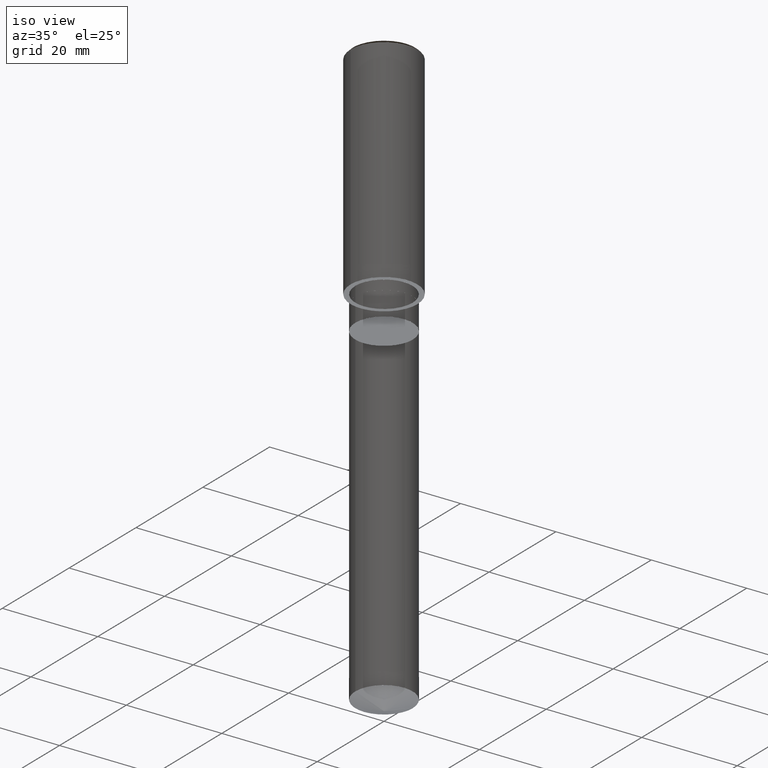
[diagram: clean part render]
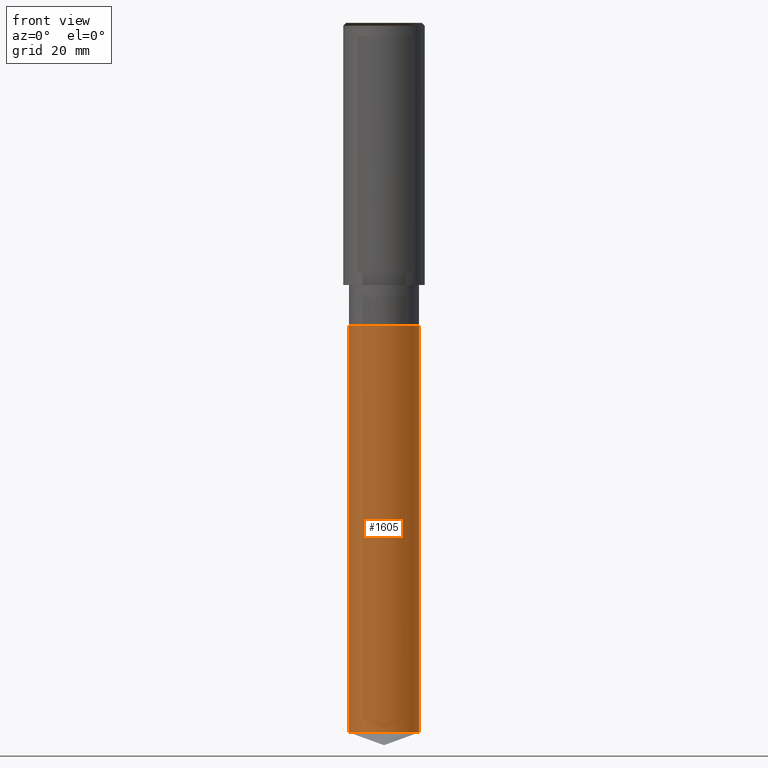
[diagram: tour spotlight — one face highlighted and labeled with its STEP entity id]
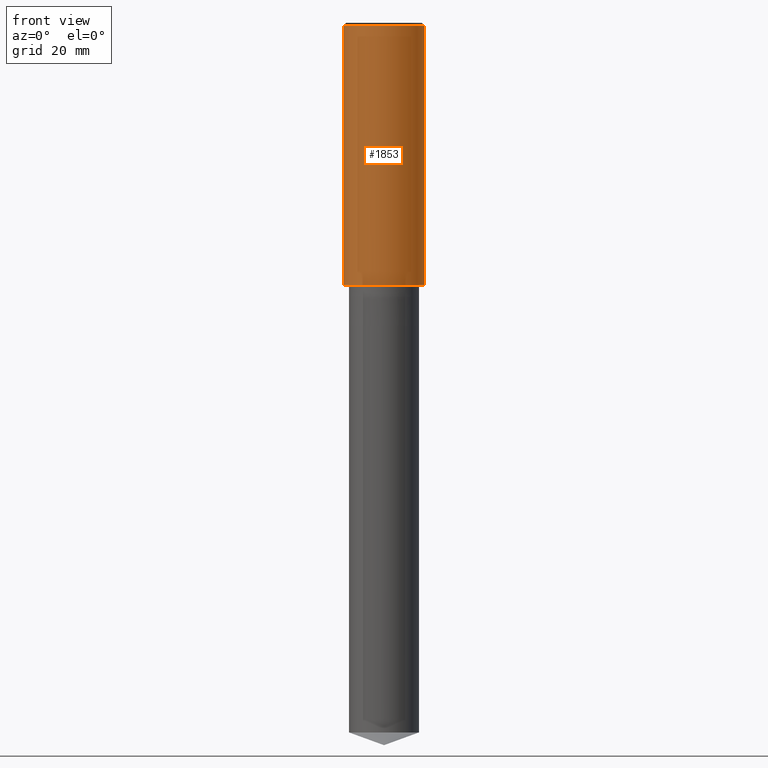
[diagram: tour spotlight — one face highlighted and labeled with its STEP entity id]
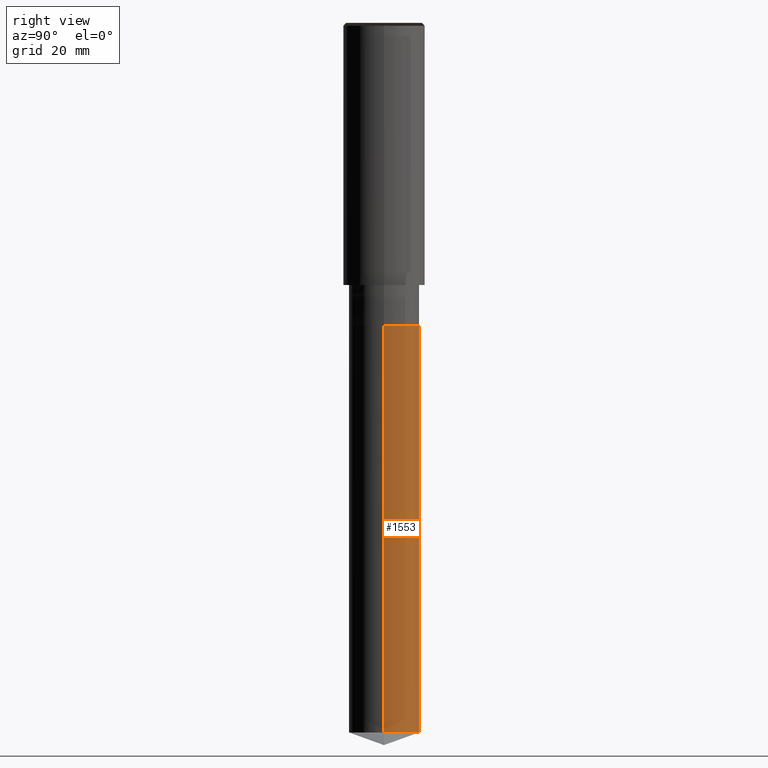
[diagram: tour spotlight — one face highlighted and labeled with its STEP entity id]
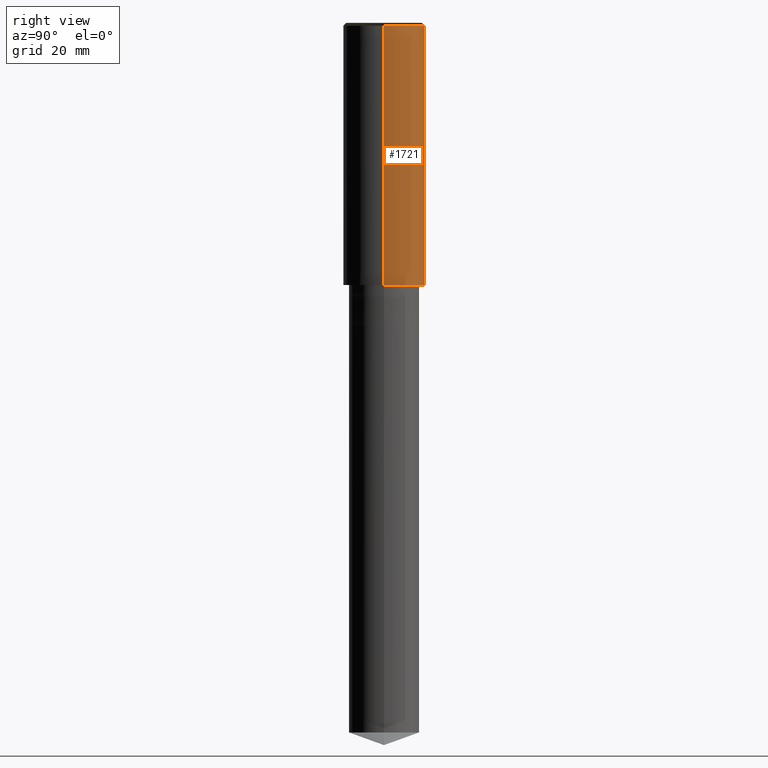
[diagram: tour spotlight — one face highlighted and labeled with its STEP entity id]
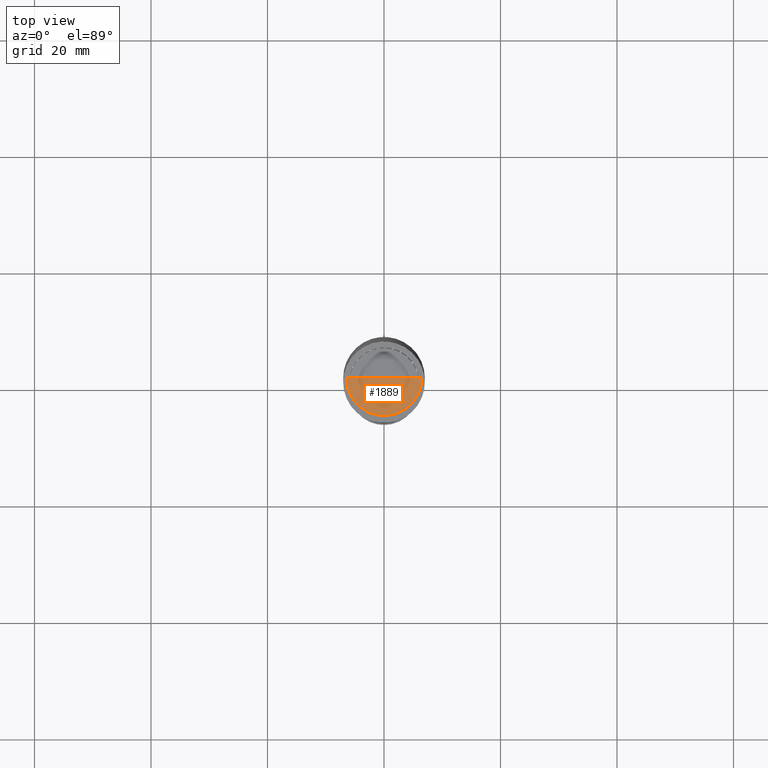
[diagram: tour spotlight — one face highlighted and labeled with its STEP entity id]
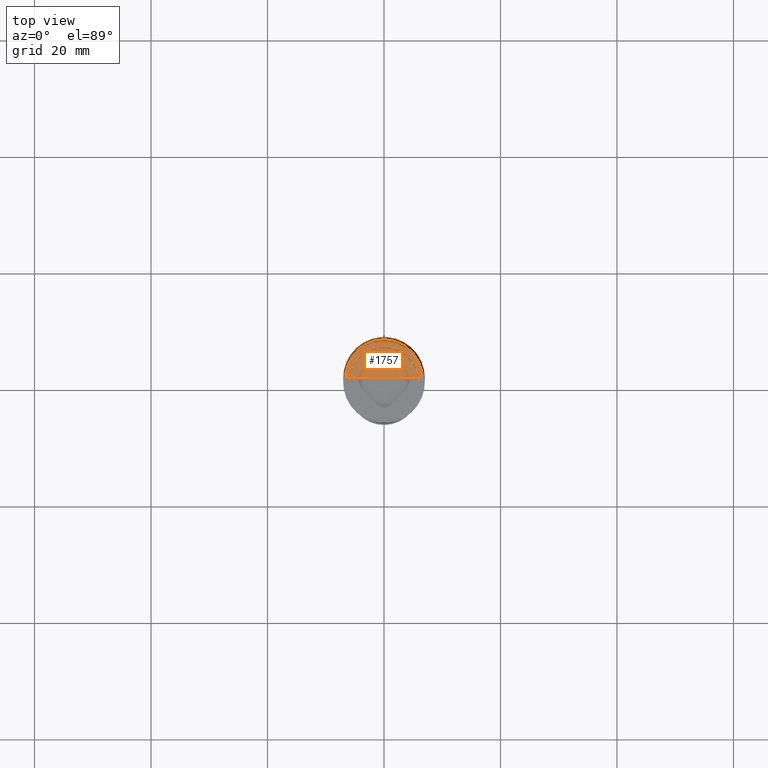
[diagram: tour spotlight — one face highlighted and labeled with its STEP entity id]
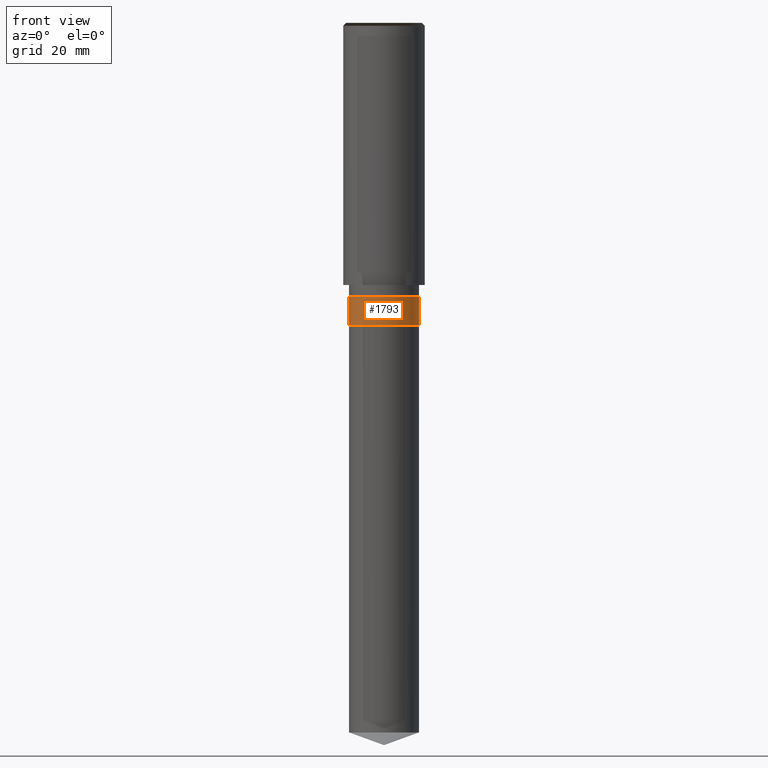
[diagram: tour spotlight — one face highlighted and labeled with its STEP entity id]
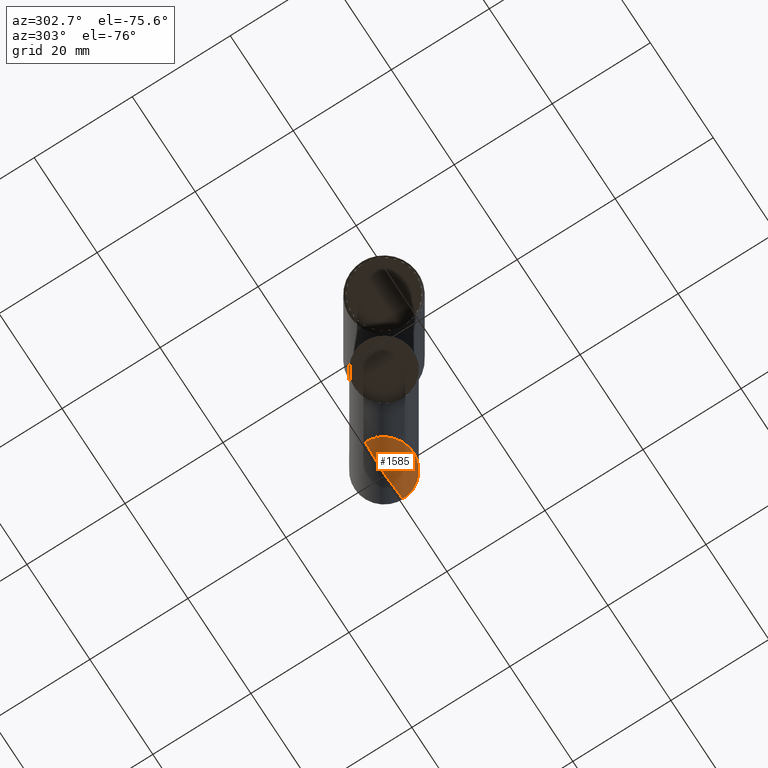
[diagram: tour spotlight — one face highlighted and labeled with its STEP entity id]
A machine part: a face-by-face anatomy tour. The part has 20 B-rep faces; the first image is the clean iso view, then the 8 largest visible faces are spotlighted one at a time (largest first), each with its STEP entity span.

Face 1 — front view, entity #1605. In plain terms, the highlighted face is a freeform B-spline surface patch.
Definition (entity closure, byte-faithful):
#1455=CARTESIAN_POINT('',(6.0,0.0,-76.816178594403));
#1459=CARTESIAN_POINT('',(-6.0,0.0,-76.816178594403));
#1460=CARTESIAN_POINT('',(6.0,0.0,-7.0));
#1464=CARTESIAN_POINT('',(-6.0,0.0,-7.0));
#1466=CARTESIAN_POINT('',(-6.0,-6.0,-76.816178594403));
#1467=CARTESIAN_POINT('',(0.0,-6.0,-76.816178594403));
#1468=CARTESIAN_POINT('',(6.0,-6.0,-76.816178594403));
#1469=CARTESIAN_POINT('',(-6.0,-6.0,-7.0));
#1470=CARTESIAN_POINT('',(0.0,-6.0,-7.0));
#1471=CARTESIAN_POINT('',(6.0,-6.0,-7.0));
#1586=(
BOUNDED_SURFACE()
B_SPLINE_SURFACE(1,2,(
(#1459,#1466,#1467,#1468,#1455),
(#1464,#1469,#1470,#1471,#1460)
), .UNSPECIFIED.,.F.,.F.,.F.)
B_SPLINE_SURFACE_WITH_KNOTS((2,2),(3,2,3),(
0.0,1.0),(
0.0,0.5,1.0), .UNSPECIFIED.)
GEOMETRIC_REPRESENTATION_ITEM()
RATIONAL_B_SPLINE_SURFACE(((1.0,0.707106781187,1.0,0.707106781187,1.0),
(1.0,0.707106781187,1.0,0.707106781187,1.0)
))
REPRESENTATION_ITEM('')
SURFACE()
);
#1587=(
BOUNDED_CURVE()
B_SPLINE_CURVE(2,(#1455,#1468,#1467,#1466,#1459),.UNSPECIFIED.,.F.,.F.)
B_SPLINE_CURVE_WITH_KNOTS((3,2,3),
(0.0,0.5,1.0),.UNSPECIFIED.)
CURVE()
GEOMETRIC_REPRESENTATION_ITEM()
RATIONAL_B_SPLINE_CURVE((1.0,0.707106781187,1.0,0.707106781187,1.0))
REPRESENTATION_ITEM('')
);
#1588=(
BOUNDED_CURVE()
B_SPLINE_CURVE(1,(#1459,#1464),.UNSPECIFIED.,.F.,.F.)
B_SPLINE_CURVE_WITH_KNOTS((2,2),
(0.0,1.0),.UNSPECIFIED.)
CURVE()
GEOMETRIC_REPRESENTATION_ITEM()
RATIONAL_B_SPLINE_CURVE((1.0,1.0))
REPRESENTATION_ITEM('')
);
#1589=(
BOUNDED_CURVE()
B_SPLINE_CURVE(2,(#1464,#1469,#1470,#1471,#1460),.UNSPECIFIED.,.F.,.F.)
B_SPLINE_CURVE_WITH_KNOTS((3,2,3),
(0.0,0.5,1.0),.UNSPECIFIED.)
CURVE()
GEOMETRIC_REPRESENTATION_ITEM()
RATIONAL_B_SPLINE_CURVE((1.0,0.707106781187,1.0,0.707106781187,1.0))
REPRESENTATION_ITEM('')
);
#1590=(
BOUNDED_CURVE()
B_SPLINE_CURVE(1,(#1460,#1455),.UNSPECIFIED.,.F.,.F.)
B_SPLINE_CURVE_WITH_KNOTS((2,2),
(0.0,1.0),.UNSPECIFIED.)
CURVE()
GEOMETRIC_REPRESENTATION_ITEM()
RATIONAL_B_SPLINE_CURVE((1.0,1.0))
REPRESENTATION_ITEM('')
);
#1591=VERTEX_POINT('',#1455);
#1592=VERTEX_POINT('',#1459);
#1593=VERTEX_POINT('',#1460);
#1594=VERTEX_POINT('',#1464);
#1595=EDGE_CURVE('',#1591,#1592,#1587,.T.);
#1596=EDGE_CURVE('',#1592,#1594,#1588,.T.);
#1597=EDGE_CURVE('',#1594,#1593,#1589,.T.);
#1598=EDGE_CURVE('',#1593,#1591,#1590,.T.);
#1599=ORIENTED_EDGE('',*,*,#1595,.T.);
#1600=ORIENTED_EDGE('',*,*,#1596,.T.);
#1601=ORIENTED_EDGE('',*,*,#1597,.T.);
#1602=ORIENTED_EDGE('',*,*,#1598,.T.);
#1603=EDGE_LOOP('',(#1599,#1600,#1601,#1602));
#1604=FACE_OUTER_BOUND('',#1603,.T.);
#1605=ADVANCED_FACE('',(#1604),#1586,.T.);

Face 2 — front view, entity #1853. In plain terms, the highlighted face is a freeform B-spline surface patch.
Definition (entity closure, byte-faithful):
#1482=CARTESIAN_POINT('',(7.0,0.0,0.0));
#1486=CARTESIAN_POINT('',(-7.0,0.0,0.0));
#1487=CARTESIAN_POINT('',(7.0,0.0,44.5));
#1491=CARTESIAN_POINT('',(-7.0,0.0,44.5));
#1504=CARTESIAN_POINT('',(-7.0,-7.0,0.0));
#1505=CARTESIAN_POINT('',(0.0,-7.0,0.0));
#1506=CARTESIAN_POINT('',(7.0,-7.0,0.0));
#1507=CARTESIAN_POINT('',(-7.0,-7.0,44.5));
#1508=CARTESIAN_POINT('',(0.0,-7.0,44.5));
#1509=CARTESIAN_POINT('',(7.0,-7.0,44.5));
#1834=(
BOUNDED_SURFACE()
B_SPLINE_SURFACE(1,2,(
(#1486,#1504,#1505,#1506,#1482),
(#1491,#1507,#1508,#1509,#1487)
), .UNSPECIFIED.,.F.,.F.,.F.)
B_SPLINE_SURFACE_WITH_KNOTS((2,2),(3,2,3),(
0.0,1.0),(
0.0,0.5,1.0), .UNSPECIFIED.)
GEOMETRIC_REPRESENTATION_ITEM()
RATIONAL_B_SPLINE_SURFACE(((1.0,0.707106781187,1.0,0.707106781187,1.0),
(1.0,0.707106781187,1.0,0.707106781187,1.0)
))
REPRESENTATION_ITEM('')
SURFACE()
);
#1835=(
BOUNDED_CURVE()
B_SPLINE_CURVE(2,(#1482,#1506,#1505,#1504,#1486),.UNSPECIFIED.,.F.,.F.)
B_SPLINE_CURVE_WITH_KNOTS((3,2,3),
(0.0,0.5,1.0),.UNSPECIFIED.)
CURVE()
GEOMETRIC_REPRESENTATION_ITEM()
RATIONAL_B_SPLINE_CURVE((1.0,0.707106781187,1.0,0.707106781187,1.0))
REPRESENTATION_ITEM('')
);
#1836=(
BOUNDED_CURVE()
B_SPLINE_CURVE(1,(#1486,#1491),.UNSPECIFIED.,.F.,.F.)
B_SPLINE_CURVE_WITH_KNOTS((2,2),
(0.0,1.0),.UNSPECIFIED.)
CURVE()
GEOMETRIC_REPRESENTATION_ITEM()
RATIONAL_B_SPLINE_CURVE((1.0,1.0))
REPRESENTATION_ITEM('')
);
#1837=(
BOUNDED_CURVE()
B_SPLINE_CURVE(2,(#1491,#1507,#1508,#1509,#1487),.UNSPECIFIED.,.F.,.F.)
B_SPLINE_CURVE_WITH_KNOTS((3,2,3),
(0.0,0.5,1.0),.UNSPECIFIED.)
CURVE()
GEOMETRIC_REPRESENTATION_ITEM()
RATIONAL_B_SPLINE_CURVE((1.0,0.707106781187,1.0,0.707106781187,1.0))
REPRESENTATION_ITEM('')
);
#1838=(
BOUNDED_CURVE()
B_SPLINE_CURVE(1,(#1487,#1482),.UNSPECIFIED.,.F.,.F.)
B_SPLINE_CURVE_WITH_KNOTS((2,2),
(0.0,1.0),.UNSPECIFIED.)
CURVE()
GEOMETRIC_REPRESENTATION_ITEM()
RATIONAL_B_SPLINE_CURVE((1.0,1.0))
REPRESENTATION_ITEM('')
);
#1839=VERTEX_POINT('',#1482);
#1840=VERTEX_POINT('',#1486);
#1841=VERTEX_POINT('',#1487);
#1842=VERTEX_POINT('',#1491);
#1843=EDGE_CURVE('',#1839,#1840,#1835,.T.);
#1844=EDGE_CURVE('',#1840,#1842,#1836,.T.);
#1845=EDGE_CURVE('',#1842,#1841,#1837,.T.);
#1846=EDGE_CURVE('',#1841,#1839,#1838,.T.);
#1847=ORIENTED_EDGE('',*,*,#1843,.T.);
#1848=ORIENTED_EDGE('',*,*,#1844,.T.);
#1849=ORIENTED_EDGE('',*,*,#1845,.T.);
#1850=ORIENTED_EDGE('',*,*,#1846,.T.);
#1851=EDGE_LOOP('',(#1847,#1848,#1849,#1850));
#1852=FACE_OUTER_BOUND('',#1851,.T.);
#1853=ADVANCED_FACE('',(#1852),#1834,.T.);

Face 3 — right view, entity #1553. In plain terms, the highlighted face is a freeform B-spline surface patch.
Definition (entity closure, byte-faithful):
#1455=CARTESIAN_POINT('',(6.0,0.0,-76.816178594403));
#1456=CARTESIAN_POINT('',(6.0,6.0,-76.816178594403));
#1457=CARTESIAN_POINT('',(0.0,6.0,-76.816178594403));
#1458=CARTESIAN_POINT('',(-6.0,6.0,-76.816178594403));
#1459=CARTESIAN_POINT('',(-6.0,0.0,-76.816178594403));
#1460=CARTESIAN_POINT('',(6.0,0.0,-7.0));
#1461=CARTESIAN_POINT('',(6.0,6.0,-7.0));
#1462=CARTESIAN_POINT('',(0.0,6.0,-7.0));
#1463=CARTESIAN_POINT('',(-6.0,6.0,-7.0));
#1464=CARTESIAN_POINT('',(-6.0,0.0,-7.0));
#1534=(
BOUNDED_SURFACE()
B_SPLINE_SURFACE(1,2,(
(#1455,#1456,#1457,#1458,#1459),
(#1460,#1461,#1462,#1463,#1464)
), .UNSPECIFIED.,.F.,.F.,.F.)
B_SPLINE_SURFACE_WITH_KNOTS((2,2),(3,2,3),(
0.0,1.0),(
0.0,0.5,1.0), .UNSPECIFIED.)
GEOMETRIC_REPRESENTATION_ITEM()
RATIONAL_B_SPLINE_SURFACE(((1.0,0.707106781187,1.0,0.707106781187,1.0),
(1.0,0.707106781187,1.0,0.707106781187,1.0)
))
REPRESENTATION_ITEM('')
SURFACE()
);
#1535=(
BOUNDED_CURVE()
B_SPLINE_CURVE(2,(#1459,#1458,#1457,#1456,#1455),.UNSPECIFIED.,.F.,.F.)
B_SPLINE_CURVE_WITH_KNOTS((3,2,3),
(0.0,0.5,1.0),.UNSPECIFIED.)
CURVE()
GEOMETRIC_REPRESENTATION_ITEM()
RATIONAL_B_SPLINE_CURVE((1.0,0.707106781187,1.0,0.707106781187,1.0))
REPRESENTATION_ITEM('')
);
#1536=(
BOUNDED_CURVE()
B_SPLINE_CURVE(1,(#1455,#1460),.UNSPECIFIED.,.F.,.F.)
B_SPLINE_CURVE_WITH_KNOTS((2,2),
(0.0,1.0),.UNSPECIFIED.)
CURVE()
GEOMETRIC_REPRESENTATION_ITEM()
RATIONAL_B_SPLINE_CURVE((1.0,1.0))
REPRESENTATION_ITEM('')
);
#1537=(
BOUNDED_CURVE()
B_SPLINE_CURVE(2,(#1460,#1461,#1462,#1463,#1464),.UNSPECIFIED.,.F.,.F.)
B_SPLINE_CURVE_WITH_KNOTS((3,2,3),
(0.0,0.5,1.0),.UNSPECIFIED.)
CURVE()
GEOMETRIC_REPRESENTATION_ITEM()
RATIONAL_B_SPLINE_CURVE((1.0,0.707106781187,1.0,0.707106781187,1.0))
REPRESENTATION_ITEM('')
);
#1538=(
BOUNDED_CURVE()
B_SPLINE_CURVE(1,(#1464,#1459),.UNSPECIFIED.,.F.,.F.)
B_SPLINE_CURVE_WITH_KNOTS((2,2),
(0.0,1.0),.UNSPECIFIED.)
CURVE()
GEOMETRIC_REPRESENTATION_ITEM()
RATIONAL_B_SPLINE_CURVE((1.0,1.0))
REPRESENTATION_ITEM('')
);
#1539=VERTEX_POINT('',#1455);
#1540=VERTEX_POINT('',#1459);
#1541=VERTEX_POINT('',#1460);
#1542=VERTEX_POINT('',#1464);
#1543=EDGE_CURVE('',#1540,#1539,#1535,.T.);
#1544=EDGE_CURVE('',#1539,#1541,#1536,.T.);
#1545=EDGE_CURVE('',#1541,#1542,#1537,.T.);
#1546=EDGE_CURVE('',#1542,#1540,#1538,.T.);
#1547=ORIENTED_EDGE('',*,*,#1543,.T.);
#1548=ORIENTED_EDGE('',*,*,#1544,.T.);
#1549=ORIENTED_EDGE('',*,*,#1545,.T.);
#1550=ORIENTED_EDGE('',*,*,#1546,.T.);
#1551=EDGE_LOOP('',(#1547,#1548,#1549,#1550));
#1552=FACE_OUTER_BOUND('',#1551,.T.);
#1553=ADVANCED_FACE('',(#1552),#1534,.T.);

Face 4 — right view, entity #1721. In plain terms, the highlighted face is a freeform B-spline surface patch.
Definition (entity closure, byte-faithful):
#1482=CARTESIAN_POINT('',(7.0,0.0,0.0));
#1483=CARTESIAN_POINT('',(7.0,7.0,0.0));
#1484=CARTESIAN_POINT('',(0.0,7.0,0.0));
#1485=CARTESIAN_POINT('',(-7.0,7.0,0.0));
#1486=CARTESIAN_POINT('',(-7.0,0.0,0.0));
#1487=CARTESIAN_POINT('',(7.0,0.0,44.5));
#1488=CARTESIAN_POINT('',(7.0,7.0,44.5));
#1489=CARTESIAN_POINT('',(0.0,7.0,44.5));
#1490=CARTESIAN_POINT('',(-7.0,7.0,44.5));
#1491=CARTESIAN_POINT('',(-7.0,0.0,44.5));
#1702=(
BOUNDED_SURFACE()
B_SPLINE_SURFACE(1,2,(
(#1482,#1483,#1484,#1485,#1486),
(#1487,#1488,#1489,#1490,#1491)
), .UNSPECIFIED.,.F.,.F.,.F.)
B_SPLINE_SURFACE_WITH_KNOTS((2,2),(3,2,3),(
0.0,1.0),(
0.0,0.5,1.0), .UNSPECIFIED.)
GEOMETRIC_REPRESENTATION_ITEM()
RATIONAL_B_SPLINE_SURFACE(((1.0,0.707106781187,1.0,0.707106781187,1.0),
(1.0,0.707106781187,1.0,0.707106781187,1.0)
))
REPRESENTATION_ITEM('')
SURFACE()
);
#1703=(
BOUNDED_CURVE()
B_SPLINE_CURVE(2,(#1486,#1485,#1484,#1483,#1482),.UNSPECIFIED.,.F.,.F.)
B_SPLINE_CURVE_WITH_KNOTS((3,2,3),
(0.0,0.5,1.0),.UNSPECIFIED.)
CURVE()
GEOMETRIC_REPRESENTATION_ITEM()
RATIONAL_B_SPLINE_CURVE((1.0,0.707106781187,1.0,0.707106781187,1.0))
REPRESENTATION_ITEM('')
);
#1704=(
BOUNDED_CURVE()
B_SPLINE_CURVE(1,(#1482,#1487),.UNSPECIFIED.,.F.,.F.)
B_SPLINE_CURVE_WITH_KNOTS((2,2),
(0.0,1.0),.UNSPECIFIED.)
CURVE()
GEOMETRIC_REPRESENTATION_ITEM()
RATIONAL_B_SPLINE_CURVE((1.0,1.0))
REPRESENTATION_ITEM('')
);
#1705=(
BOUNDED_CURVE()
B_SPLINE_CURVE(2,(#1487,#1488,#1489,#1490,#1491),.UNSPECIFIED.,.F.,.F.)
B_SPLINE_CURVE_WITH_KNOTS((3,2,3),
(0.0,0.5,1.0),.UNSPECIFIED.)
CURVE()
GEOMETRIC_REPRESENTATION_ITEM()
RATIONAL_B_SPLINE_CURVE((1.0,0.707106781187,1.0,0.707106781187,1.0))
REPRESENTATION_ITEM('')
);
#1706=(
BOUNDED_CURVE()
B_SPLINE_CURVE(1,(#1491,#1486),.UNSPECIFIED.,.F.,.F.)
B_SPLINE_CURVE_WITH_KNOTS((2,2),
(0.0,1.0),.UNSPECIFIED.)
CURVE()
GEOMETRIC_REPRESENTATION_ITEM()
RATIONAL_B_SPLINE_CURVE((1.0,1.0))
REPRESENTATION_ITEM('')
);
#1707=VERTEX_POINT('',#1482);
#1708=VERTEX_POINT('',#1486);
#1709=VERTEX_POINT('',#1487);
#1710=VERTEX_POINT('',#1491);
#1711=EDGE_CURVE('',#1708,#1707,#1703,.T.);
#1712=EDGE_CURVE('',#1707,#1709,#1704,.T.);
#1713=EDGE_CURVE('',#1709,#1710,#1705,.T.);
#1714=EDGE_CURVE('',#1710,#1708,#1706,.T.);
#1715=ORIENTED_EDGE('',*,*,#1711,.T.);
#1716=ORIENTED_EDGE('',*,*,#1712,.T.);
#1717=ORIENTED_EDGE('',*,*,#1713,.T.);
#1718=ORIENTED_EDGE('',*,*,#1714,.T.);
#1719=EDGE_LOOP('',(#1715,#1716,#1717,#1718));
#1720=FACE_OUTER_BOUND('',#1719,.T.);
#1721=ADVANCED_FACE('',(#1720),#1702,.T.);

Face 5 — top view, entity #1889. In plain terms, the highlighted face is a freeform B-spline surface patch.
Definition (entity closure, byte-faithful):
#1492=CARTESIAN_POINT('',(6.5,0.0,45.0));
#1496=CARTESIAN_POINT('',(-6.5,0.0,45.0));
#1497=CARTESIAN_POINT('',(0.0,0.0,45.0));
#1510=CARTESIAN_POINT('',(-6.5,-6.5,45.0));
#1511=CARTESIAN_POINT('',(0.0,-6.5,45.0));
#1512=CARTESIAN_POINT('',(6.5,-6.5,45.0));
#1874=(
BOUNDED_SURFACE()
B_SPLINE_SURFACE(1,2,(
(#1496,#1510,#1511,#1512,#1492),
(#1497,#1497,#1497,#1497,#1497)
), .UNSPECIFIED.,.F.,.F.,.F.)
B_SPLINE_SURFACE_WITH_KNOTS((2,2),(3,2,3),(
0.0,1.0),(
0.0,0.5,1.0), .UNSPECIFIED.)
GEOMETRIC_REPRESENTATION_ITEM()
RATIONAL_B_SPLINE_SURFACE(((1.0,0.707106781187,1.0,0.707106781187,1.0),
(1.0,0.707106781187,1.0,0.707106781187,1.0)
))
REPRESENTATION_ITEM('')
SURFACE()
);
#1875=(
BOUNDED_CURVE()
B_SPLINE_CURVE(2,(#1492,#1512,#1511,#1510,#1496),.UNSPECIFIED.,.F.,.F.)
B_SPLINE_CURVE_WITH_KNOTS((3,2,3),
(0.0,0.5,1.0),.UNSPECIFIED.)
CURVE()
GEOMETRIC_REPRESENTATION_ITEM()
RATIONAL_B_SPLINE_CURVE((1.0,0.707106781187,1.0,0.707106781187,1.0))
REPRESENTATION_ITEM('')
);
#1876=(
BOUNDED_CURVE()
B_SPLINE_CURVE(1,(#1496,#1497),.UNSPECIFIED.,.F.,.F.)
B_SPLINE_CURVE_WITH_KNOTS((2,2),
(0.0,1.0),.UNSPECIFIED.)
CURVE()
GEOMETRIC_REPRESENTATION_ITEM()
RATIONAL_B_SPLINE_CURVE((1.0,1.0))
REPRESENTATION_ITEM('')
);
#1877=(
BOUNDED_CURVE()
B_SPLINE_CURVE(1,(#1497,#1492),.UNSPECIFIED.,.F.,.F.)
B_SPLINE_CURVE_WITH_KNOTS((2,2),
(0.0,1.0),.UNSPECIFIED.)
CURVE()
GEOMETRIC_REPRESENTATION_ITEM()
RATIONAL_B_SPLINE_CURVE((1.0,1.0))
REPRESENTATION_ITEM('')
);
#1878=VERTEX_POINT('',#1492);
#1879=VERTEX_POINT('',#1496);
#1880=VERTEX_POINT('',#1497);
#1881=EDGE_CURVE('',#1878,#1879,#1875,.T.);
#1882=EDGE_CURVE('',#1879,#1880,#1876,.T.);
#1883=EDGE_CURVE('',#1880,#1878,#1877,.T.);
#1884=ORIENTED_EDGE('',*,*,#1881,.T.);
#1885=ORIENTED_EDGE('',*,*,#1882,.T.);
#1886=ORIENTED_EDGE('',*,*,#1883,.T.);
#1887=EDGE_LOOP('',(#1884,#1885,#1886));
#1888=FACE_OUTER_BOUND('',#1887,.T.);
#1889=ADVANCED_FACE('',(#1888),#1874,.T.);

Face 6 — top view, entity #1757. In plain terms, the highlighted face is a freeform B-spline surface patch.
Definition (entity closure, byte-faithful):
#1492=CARTESIAN_POINT('',(6.5,0.0,45.0));
#1493=CARTESIAN_POINT('',(6.5,6.5,45.0));
#1494=CARTESIAN_POINT('',(0.0,6.5,45.0));
#1495=CARTESIAN_POINT('',(-6.5,6.5,45.0));
#1496=CARTESIAN_POINT('',(-6.5,0.0,45.0));
#1497=CARTESIAN_POINT('',(0.0,0.0,45.0));
#1742=(
BOUNDED_SURFACE()
B_SPLINE_SURFACE(1,2,(
(#1492,#1493,#1494,#1495,#1496),
(#1497,#1497,#1497,#1497,#1497)
), .UNSPECIFIED.,.F.,.F.,.F.)
B_SPLINE_SURFACE_WITH_KNOTS((2,2),(3,2,3),(
0.0,1.0),(
0.0,0.5,1.0), .UNSPECIFIED.)
GEOMETRIC_REPRESENTATION_ITEM()
RATIONAL_B_SPLINE_SURFACE(((1.0,0.707106781187,1.0,0.707106781187,1.0),
(1.0,0.707106781187,1.0,0.707106781187,1.0)
))
REPRESENTATION_ITEM('')
SURFACE()
);
#1743=(
BOUNDED_CURVE()
B_SPLINE_CURVE(2,(#1496,#1495,#1494,#1493,#1492),.UNSPECIFIED.,.F.,.F.)
B_SPLINE_CURVE_WITH_KNOTS((3,2,3),
(0.0,0.5,1.0),.UNSPECIFIED.)
CURVE()
GEOMETRIC_REPRESENTATION_ITEM()
RATIONAL_B_SPLINE_CURVE((1.0,0.707106781187,1.0,0.707106781187,1.0))
REPRESENTATION_ITEM('')
);
#1744=(
BOUNDED_CURVE()
B_SPLINE_CURVE(1,(#1492,#1497),.UNSPECIFIED.,.F.,.F.)
B_SPLINE_CURVE_WITH_KNOTS((2,2),
(0.0,1.0),.UNSPECIFIED.)
CURVE()
GEOMETRIC_REPRESENTATION_ITEM()
RATIONAL_B_SPLINE_CURVE((1.0,1.0))
REPRESENTATION_ITEM('')
);
#1745=(
BOUNDED_CURVE()
B_SPLINE_CURVE(1,(#1497,#1496),.UNSPECIFIED.,.F.,.F.)
B_SPLINE_CURVE_WITH_KNOTS((2,2),
(0.0,1.0),.UNSPECIFIED.)
CURVE()
GEOMETRIC_REPRESENTATION_ITEM()
RATIONAL_B_SPLINE_CURVE((1.0,1.0))
REPRESENTATION_ITEM('')
);
#1746=VERTEX_POINT('',#1492);
#1747=VERTEX_POINT('',#1496);
#1748=VERTEX_POINT('',#1497);
#1749=EDGE_CURVE('',#1747,#1746,#1743,.T.);
#1750=EDGE_CURVE('',#1746,#1748,#1744,.T.);
#1751=EDGE_CURVE('',#1748,#1747,#1745,.T.);
#1752=ORIENTED_EDGE('',*,*,#1749,.T.);
#1753=ORIENTED_EDGE('',*,*,#1750,.T.);
#1754=ORIENTED_EDGE('',*,*,#1751,.T.);
#1755=EDGE_LOOP('',(#1752,#1753,#1754));
#1756=FACE_OUTER_BOUND('',#1755,.T.);
#1757=ADVANCED_FACE('',(#1756),#1742,.T.);

Face 7 — front view, entity #1793. In plain terms, the highlighted face is a freeform B-spline surface patch.
Definition (entity closure, byte-faithful):
#1460=CARTESIAN_POINT('',(6.0,0.0,-7.0));
#1464=CARTESIAN_POINT('',(-6.0,0.0,-7.0));
#1469=CARTESIAN_POINT('',(-6.0,-6.0,-7.0));
#1470=CARTESIAN_POINT('',(0.0,-6.0,-7.0));
#1471=CARTESIAN_POINT('',(6.0,-6.0,-7.0));
#1472=CARTESIAN_POINT('',(6.0,0.0,-2.0));
#1476=CARTESIAN_POINT('',(-6.0,0.0,-2.0));
#1498=CARTESIAN_POINT('',(-6.0,-6.0,-2.0));
#1499=CARTESIAN_POINT('',(0.0,-6.0,-2.0));
#1500=CARTESIAN_POINT('',(6.0,-6.0,-2.0));
#1774=(
BOUNDED_SURFACE()
B_SPLINE_SURFACE(1,2,(
(#1464,#1469,#1470,#1471,#1460),
(#1476,#1498,#1499,#1500,#1472)
), .UNSPECIFIED.,.F.,.F.,.F.)
B_SPLINE_SURFACE_WITH_KNOTS((2,2),(3,2,3),(
0.0,1.0),(
0.0,0.5,1.0), .UNSPECIFIED.)
GEOMETRIC_REPRESENTATION_ITEM()
RATIONAL_B_SPLINE_SURFACE(((1.0,0.707106781187,1.0,0.707106781187,1.0),
(1.0,0.707106781187,1.0,0.707106781187,1.0)
))
REPRESENTATION_ITEM('')
SURFACE()
);
#1775=(
BOUNDED_CURVE()
B_SPLINE_CURVE(2,(#1460,#1471,#1470,#1469,#1464),.UNSPECIFIED.,.F.,.F.)
B_SPLINE_CURVE_WITH_KNOTS((3,2,3),
(0.0,0.5,1.0),.UNSPECIFIED.)
CURVE()
GEOMETRIC_REPRESENTATION_ITEM()
RATIONAL_B_SPLINE_CURVE((1.0,0.707106781187,1.0,0.707106781187,1.0))
REPRESENTATION_ITEM('')
);
#1776=(
BOUNDED_CURVE()
B_SPLINE_CURVE(1,(#1464,#1476),.UNSPECIFIED.,.F.,.F.)
B_SPLINE_CURVE_WITH_KNOTS((2,2),
(0.0,1.0),.UNSPECIFIED.)
CURVE()
GEOMETRIC_REPRESENTATION_ITEM()
RATIONAL_B_SPLINE_CURVE((1.0,1.0))
REPRESENTATION_ITEM('')
);
#1777=(
BOUNDED_CURVE()
B_SPLINE_CURVE(2,(#1476,#1498,#1499,#1500,#1472),.UNSPECIFIED.,.F.,.F.)
B_SPLINE_CURVE_WITH_KNOTS((3,2,3),
(0.0,0.5,1.0),.UNSPECIFIED.)
CURVE()
GEOMETRIC_REPRESENTATION_ITEM()
RATIONAL_B_SPLINE_CURVE((1.0,0.707106781187,1.0,0.707106781187,1.0))
REPRESENTATION_ITEM('')
);
#1778=(
BOUNDED_CURVE()
B_SPLINE_CURVE(1,(#1472,#1460),.UNSPECIFIED.,.F.,.F.)
B_SPLINE_CURVE_WITH_KNOTS((2,2),
(0.0,1.0),.UNSPECIFIED.)
CURVE()
GEOMETRIC_REPRESENTATION_ITEM()
RATIONAL_B_SPLINE_CURVE((1.0,1.0))
REPRESENTATION_ITEM('')
);
#1779=VERTEX_POINT('',#1460);
#1780=VERTEX_POINT('',#1464);
#1781=VERTEX_POINT('',#1472);
#1782=VERTEX_POINT('',#1476);
#1783=EDGE_CURVE('',#1779,#1780,#1775,.T.);
#1784=EDGE_CURVE('',#1780,#1782,#1776,.T.);
#1785=EDGE_CURVE('',#1782,#1781,#1777,.T.);
#1786=EDGE_CURVE('',#1781,#1779,#1778,.T.);
#1787=ORIENTED_EDGE('',*,*,#1783,.T.);
#1788=ORIENTED_EDGE('',*,*,#1784,.T.);
#1789=ORIENTED_EDGE('',*,*,#1785,.T.);
#1790=ORIENTED_EDGE('',*,*,#1786,.T.);
#1791=EDGE_LOOP('',(#1787,#1788,#1789,#1790));
#1792=FACE_OUTER_BOUND('',#1791,.T.);
#1793=ADVANCED_FACE('',(#1792),#1774,.T.);

Face 8 — auxiliary view, entity #1585. In plain terms, the highlighted face is a freeform B-spline surface patch.
Definition (entity closure, byte-faithful):
#1454=CARTESIAN_POINT('',(0.0,0.0,-79.0));
#1455=CARTESIAN_POINT('',(6.0,0.0,-76.816178594403));
#1459=CARTESIAN_POINT('',(-6.0,0.0,-76.816178594403));
#1466=CARTESIAN_POINT('',(-6.0,-6.0,-76.816178594403));
#1467=CARTESIAN_POINT('',(0.0,-6.0,-76.816178594403));
#1468=CARTESIAN_POINT('',(6.0,-6.0,-76.816178594403));
#1570=(
BOUNDED_SURFACE()
B_SPLINE_SURFACE(1,2,(
(#1454,#1454,#1454,#1454,#1454),
(#1459,#1466,#1467,#1468,#1455)
), .UNSPECIFIED.,.F.,.F.,.F.)
B_SPLINE_SURFACE_WITH_KNOTS((2,2),(3,2,3),(
0.0,1.0),(
0.0,0.5,1.0), .UNSPECIFIED.)
GEOMETRIC_REPRESENTATION_ITEM()
RATIONAL_B_SPLINE_SURFACE(((1.0,0.707106781187,1.0,0.707106781187,1.0),
(1.0,0.707106781187,1.0,0.707106781187,1.0)
))
REPRESENTATION_ITEM('')
SURFACE()
);
#1571=(
BOUNDED_CURVE()
B_SPLINE_CURVE(1,(#1455,#1454),.UNSPECIFIED.,.F.,.F.)
B_SPLINE_CURVE_WITH_KNOTS((2,2),
(0.0,1.0),.UNSPECIFIED.)
CURVE()
GEOMETRIC_REPRESENTATION_ITEM()
RATIONAL_B_SPLINE_CURVE((1.0,1.0))
REPRESENTATION_ITEM('')
);
#1572=(
BOUNDED_CURVE()
B_SPLINE_CURVE(1,(#1454,#1459),.UNSPECIFIED.,.F.,.F.)
B_SPLINE_CURVE_WITH_KNOTS((2,2),
(0.0,1.0),.UNSPECIFIED.)
CURVE()
GEOMETRIC_REPRESENTATION_ITEM()
RATIONAL_B_SPLINE_CURVE((1.0,1.0))
REPRESENTATION_ITEM('')
);
#1573=(
BOUNDED_CURVE()
B_SPLINE_CURVE(2,(#1459,#1466,#1467,#1468,#1455),.UNSPECIFIED.,.F.,.F.)
B_SPLINE_CURVE_WITH_KNOTS((3,2,3),
(0.0,0.5,1.0),.UNSPECIFIED.)
CURVE()
GEOMETRIC_REPRESENTATION_ITEM()
RATIONAL_B_SPLINE_CURVE((1.0,0.707106781187,1.0,0.707106781187,1.0))
REPRESENTATION_ITEM('')
);
#1574=VERTEX_POINT('',#1454);
#1575=VERTEX_POINT('',#1455);
#1576=VERTEX_POINT('',#1459);
#1577=EDGE_CURVE('',#1575,#1574,#1571,.T.);
#1578=EDGE_CURVE('',#1574,#1576,#1572,.T.);
#1579=EDGE_CURVE('',#1576,#1575,#1573,.T.);
#1580=ORIENTED_EDGE('',*,*,#1577,.T.);
#1581=ORIENTED_EDGE('',*,*,#1578,.T.);
#1582=ORIENTED_EDGE('',*,*,#1579,.T.);
#1583=EDGE_LOOP('',(#1580,#1581,#1582));
#1584=FACE_OUTER_BOUND('',#1583,.T.);
#1585=ADVANCED_FACE('',(#1584),#1570,.T.);